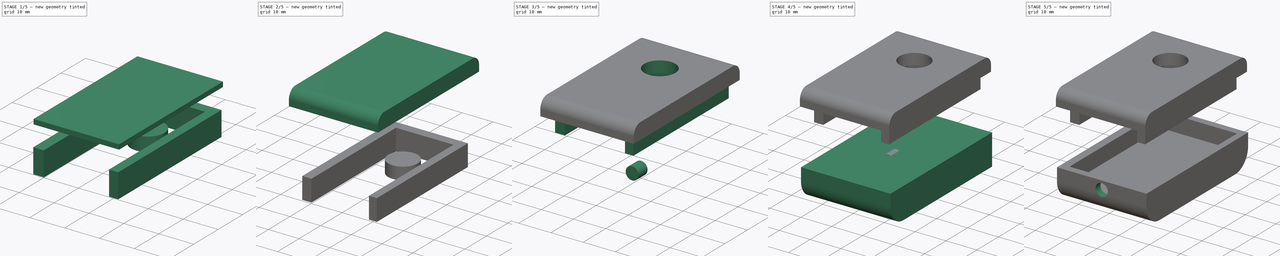
[diagram: build sequence overview — one tinted view per stage of 5, left to right]
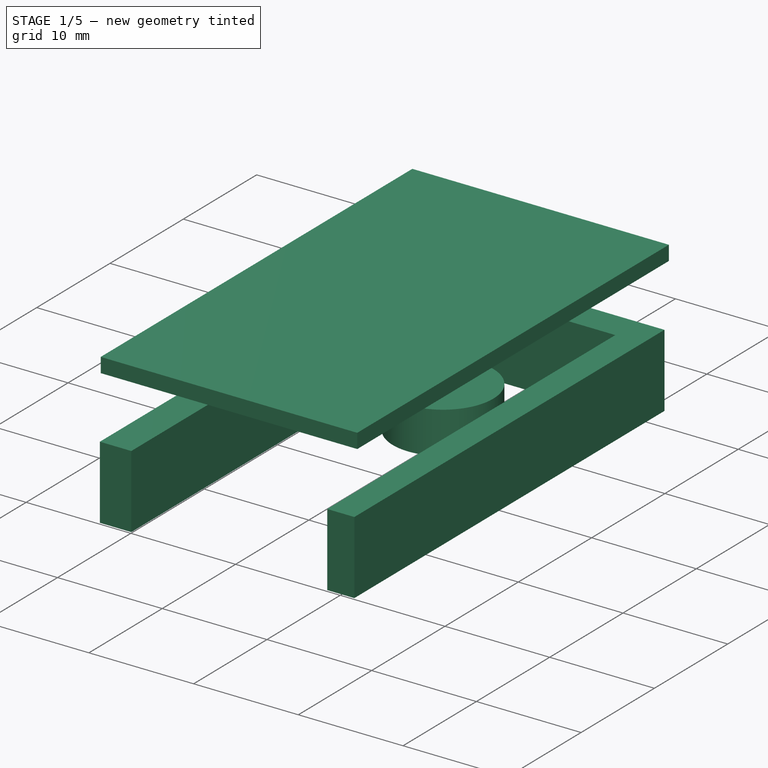
[diagram: stage 1 of 5 — iso view after this stage's code; geometry added in this stage tinted green]
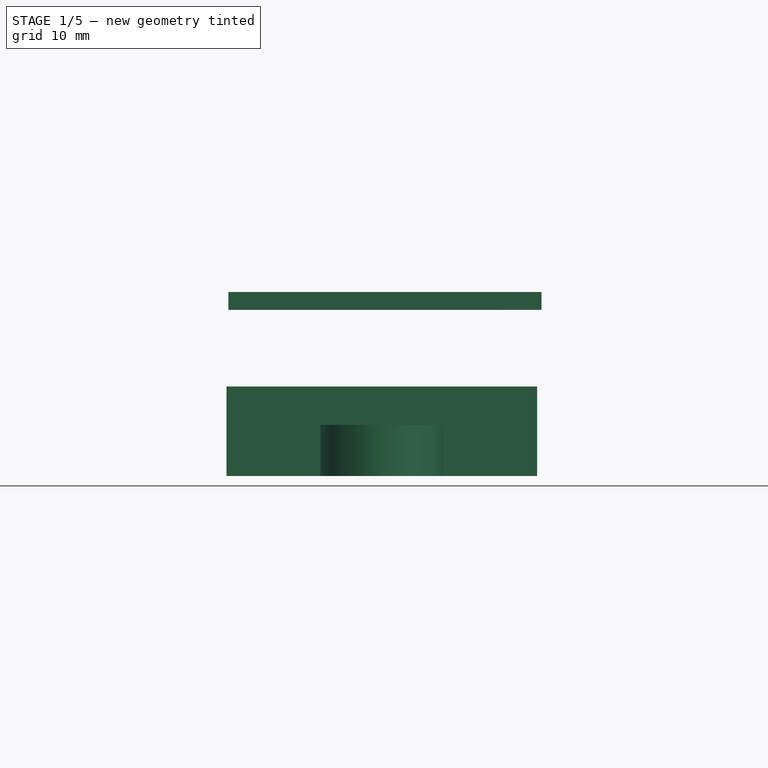
[diagram: stage 1 of 5 — front view after this stage's code; geometry added in this stage tinted green]
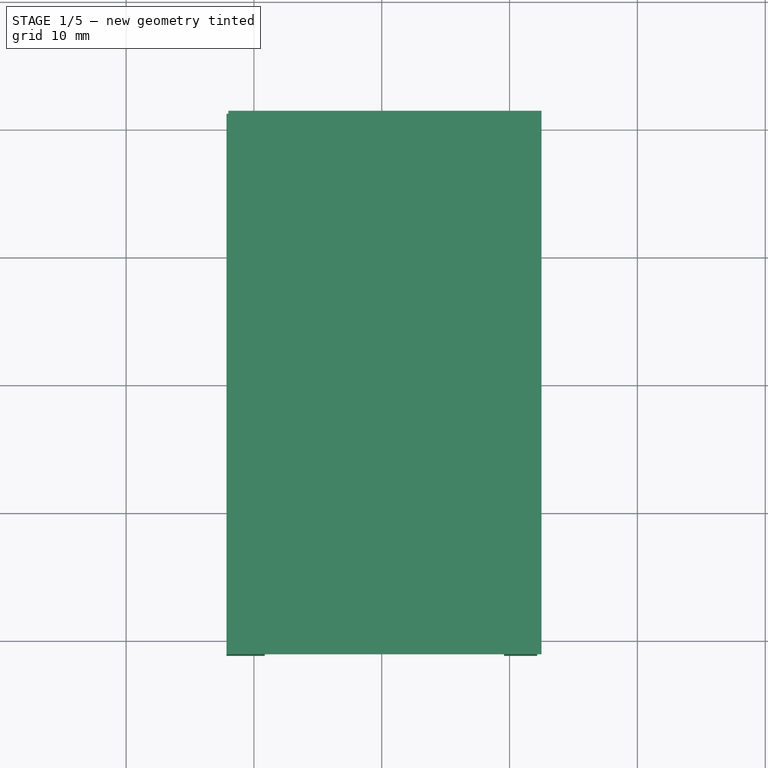
[diagram: stage 1 of 5 — top view after this stage's code; geometry added in this stage tinted green]
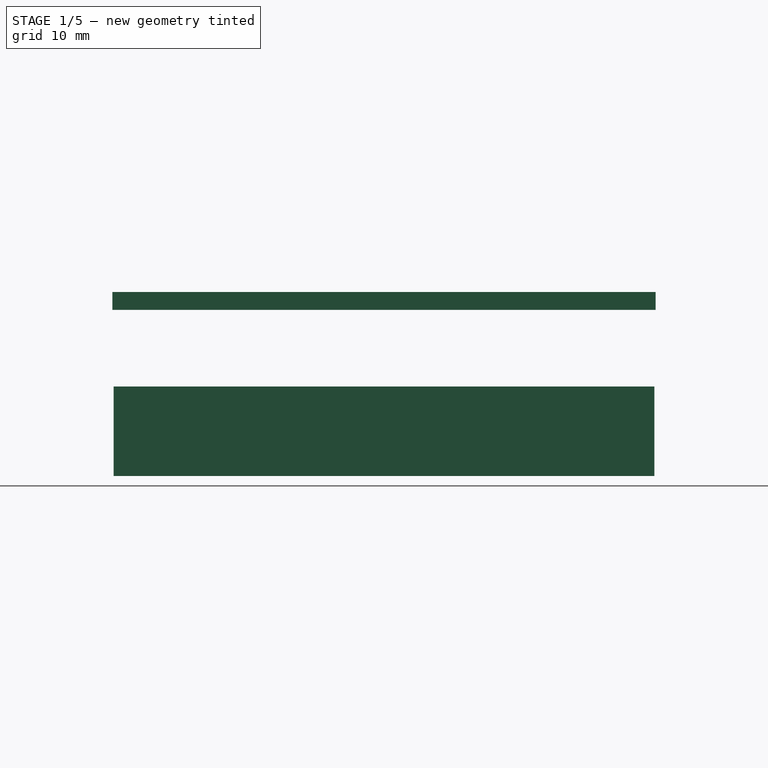
[diagram: stage 1 of 5 — right view after this stage's code; geometry added in this stage tinted green]
FCSTD DOCUMENT  (FreeCAD 0.18R16131 (Git))
Label: sensor
License: All rights reserved
LicenseURL: http://en.wikipedia.org/wiki/All_rights_reserved
objects: Sketcher::SketchObject×4, PartDesign::Pad×4, PartDesign::Body×4, Part::Cut×4, Part::Box×3, PartDesign::Fillet×2, Part::Fillet×1, Part::MultiFuse×1
note: 27 computed .brp shape members not serialized (recipe doc carries the construction recipe); baked Part::Feature solids carry a one-line shape summary decoded from their .brp

FEATURE [Part::Box] Box002  label="Cube002"
  AttacherType = Attacher::AttachEngine3D
  Height = 1.4
  Length = 42.5
  Placement = pos=(12.5,-21.25,13) rot=(0,0,1;1.5708rad)
  Width = 24.5
FEATURE [Sketcher::SketchObject] Sketch001
  MapMode = 5
  Support = -> [XY_Plane001]
  sketch-geometry (6):
    g0: LineSegment [constr] StartX=-12 StartY=21 StartZ=0 EndX=12 EndY=21 EndZ=0
    g1: LineSegment [constr] StartX=12 StartY=21 StartZ=0 EndX=12 EndY=-21 EndZ=0
    g2: LineSegment [constr] StartX=12 StartY=-21 StartZ=0 EndX=-12 EndY=-21 EndZ=0
    g3: LineSegment [constr] StartX=-12 StartY=-21 StartZ=0 EndX=-12 EndY=21 EndZ=0
    g4: LineSegment [constr] StartX=0 StartY=-21 StartZ=0 EndX=0 EndY=3.5 EndZ=0
    g5: Circle CenterX=0 CenterY=8.3 CenterZ=0 NormalX=0 NormalY=0 NormalZ=1 AngleXU=0 Radius=4.8
  constraints (17):
    c: Coincident(g0,g1)
    c: Coincident(g1,g2)
    c: Coincident(g2,g3)
    c: Coincident(g3,g0)
    c: Horizontal(g2)
    c: Vertical(g3)
    c: Distance(g0) = 24
    c: DistanceY(g1,g1) = 42
    c: Symmetric(g0,g0,g-2)
    c: Symmetric(g0,g1,g-1)
    c: PointOnObject(g4,g2)
    c: PointOnObject(g4,g-2)
    c: Vertical(g4)
    c: Distance(g4) = 24.5
    c: PointOnObject(g5,g-2)
    c: PointOnObject(g4,g5)
    c: Radius(g5) = 4.8
FEATURE [PartDesign::Pad] Pad001
  Length = 4
  Length2 = 100
  Profile = -> Sketch001
  Refine = true
  Type = 0
FEATURE [Sketcher::SketchObject] Sketch002
  MapMode = 5
  Support = -> [XY_Plane002]
  sketch-geometry (12):
    g0: LineSegment [constr] StartX=-12.15 StartY=21.15 StartZ=0 EndX=12.15 EndY=21.15 EndZ=0
    g1: LineSegment [constr] StartX=12.15 StartY=21.15 StartZ=0 EndX=12.15 EndY=-21.15 EndZ=0
    g2: LineSegment [constr] StartX=12.15 StartY=-21.15 StartZ=0 EndX=-12.15 EndY=-21.15 EndZ=0
    g3: LineSegment [constr] StartX=-12.15 StartY=-21.15 StartZ=0 EndX=-12.15 EndY=21.15 EndZ=0
    g4: LineSegment StartX=-12.15 StartY=-21.15 StartZ=0 EndX=-12.15 EndY=21.15 EndZ=0
    g5: LineSegment StartX=-12.15 StartY=21.15 StartZ=0 EndX=12.15 EndY=21.15 EndZ=0
    g6: LineSegment StartX=12.15 StartY=21.15 StartZ=0 EndX=12.15 EndY=-21.15 EndZ=0
    g7: LineSegment StartX=12.15 StartY=-21.15 StartZ=0 EndX=9.55894 EndY=-21.15 EndZ=0
    g8: LineSegment StartX=9.55894 StartY=-21.15 StartZ=0 EndX=9.55894 EndY=18.15 EndZ=0
    g9: LineSegment StartX=9.55894 StartY=18.15 StartZ=0 EndX=-9.15 EndY=18.15 EndZ=0
    g10: LineSegment StartX=-9.15 StartY=18.15 StartZ=0 EndX=-9.15 EndY=-21.15 EndZ=0
    g11: LineSegment StartX=-12.15 StartY=-21.15 StartZ=0 EndX=-9.15 EndY=-21.15 EndZ=0
  constraints (29):
    c: Coincident(g0,g1)
    c: Coincident(g1,g2)
    c: Coincident(g2,g3)
    c: Coincident(g3,g0)
    c: Horizontal(g2)
    c: Vertical(g1)
    c: Symmetric(g0,g0,g-2)
    c: DistanceX(g0,g0) = 24.3
    c: Symmetric(g0,g2,g-1)
    c: DistanceY(g3,g3) = 42.3
    c: Coincident(g2,g4)
    c: Coincident(g4,g0)
    c: Coincident(g4,g5)
    c: Coincident(g5,g0)
    c: Coincident(g5,g6)
    c: Coincident(g6,g1)
    c: Coincident(g6,g7)
    c: PointOnObject(g7,g2)
    c: Coincident(g7,g8)
    c: Vertical(g8)
    c: Coincident(g9,g8)
    c: Horizontal(g9)
    c: Coincident(g10,g9)
    c: PointOnObject(g10,g2)
    c: Vertical(g10)
    c: Coincident(g11,g4)
    c: Coincident(g11,g10)
    c: Distance(g11) = 3
    c: Distance(g9,g5) = 3
FEATURE [PartDesign::Pad] Pad002
  Length = 7
  Length2 = 100
  Profile = -> Sketch002
  Refine = true
  Type = 0
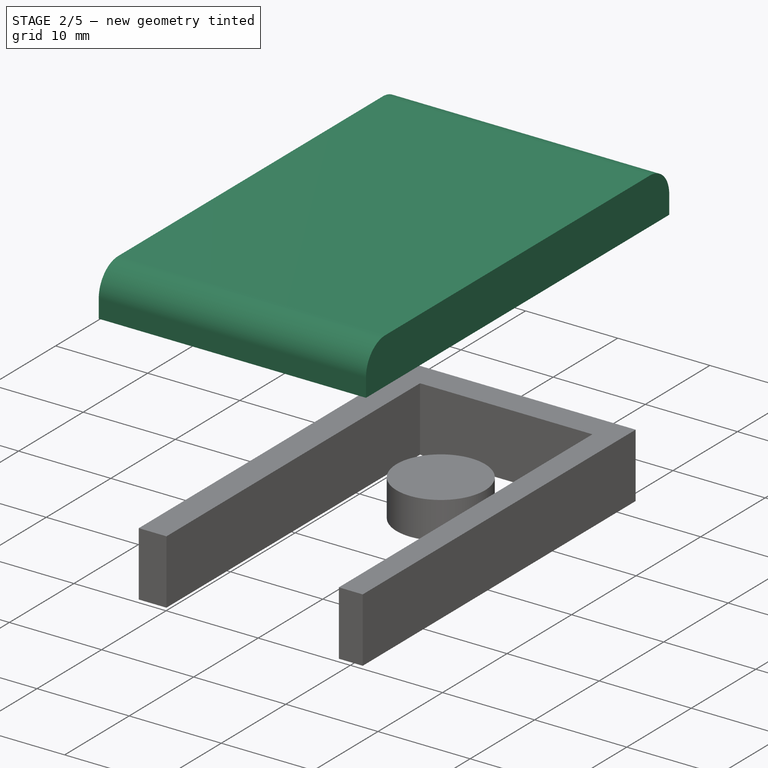
[diagram: stage 2 of 5 — iso view after this stage's code; geometry added in this stage tinted green]
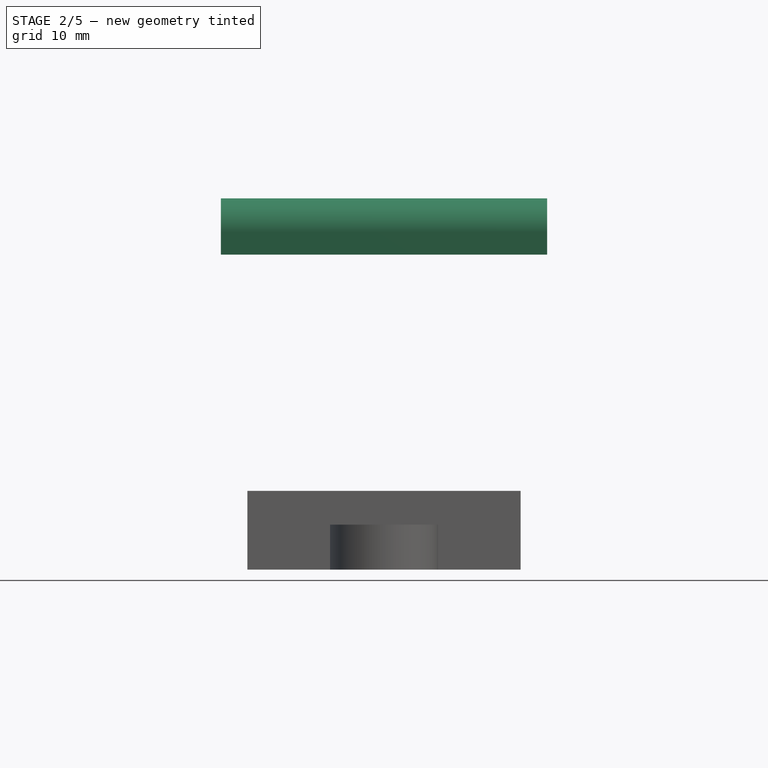
[diagram: stage 2 of 5 — front view after this stage's code; geometry added in this stage tinted green]
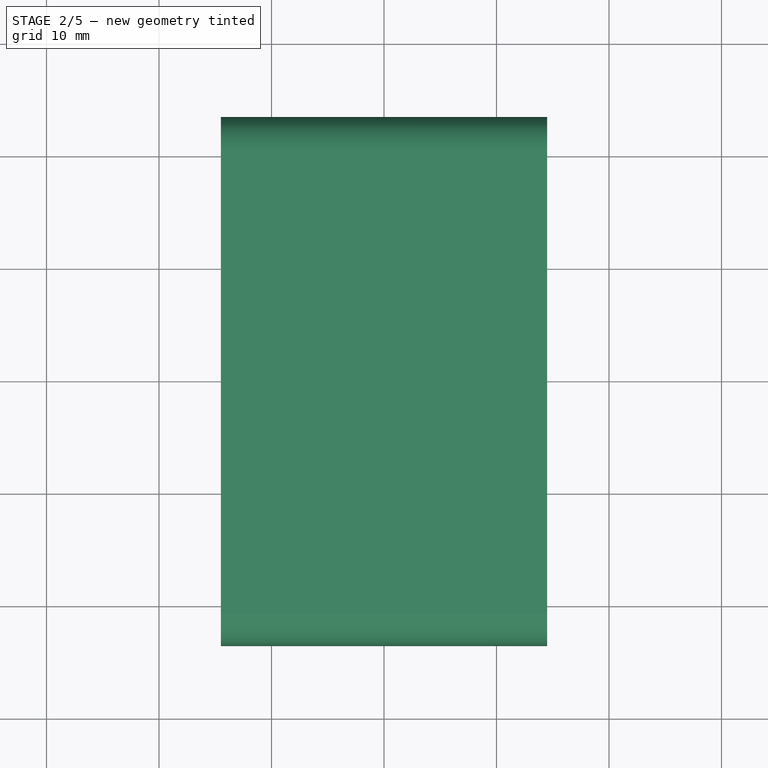
[diagram: stage 2 of 5 — top view after this stage's code; geometry added in this stage tinted green]
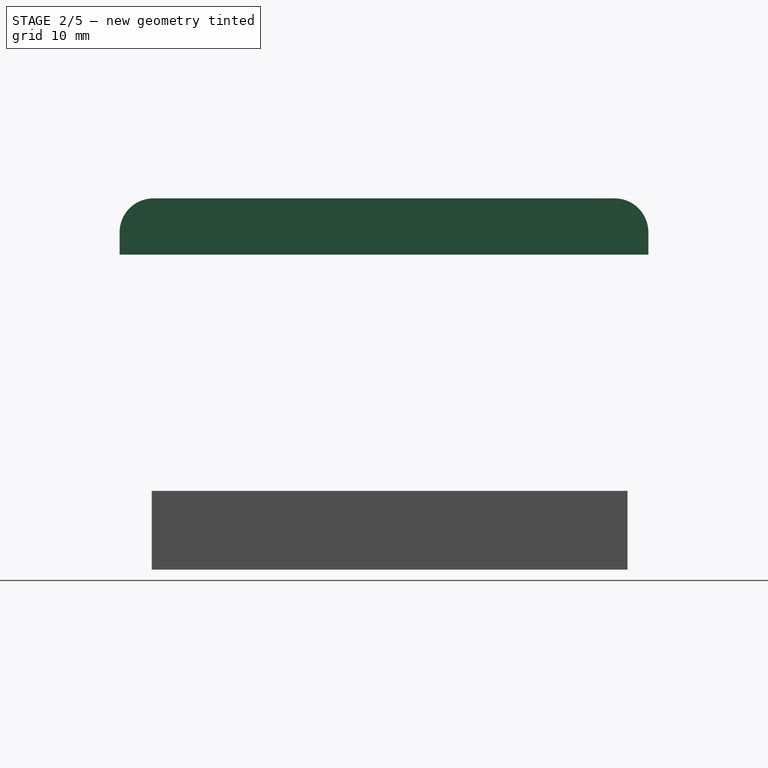
[diagram: stage 2 of 5 — right view after this stage's code; geometry added in this stage tinted green]
FEATURE [Part::Box] Box001  label="Cube001"
  AttacherType = Attacher::AttachEngine3D
  Height = 5
  Length = 29
  Placement = pos=(-14.5,-24,13) rot=(0,0,1;0rad)
  Width = 47
FEATURE [Part::Cut] Cut001
  Base = -> Box001
  Refine = true
  Tool = -> Box002
FEATURE [Part::Fillet] Fillet002
  Base = -> Cut001
  Edges = 2 edges r=3: [Edge7,Edge8]
  Placement = pos=(0,0,15) rot=(0,0,1;0rad)
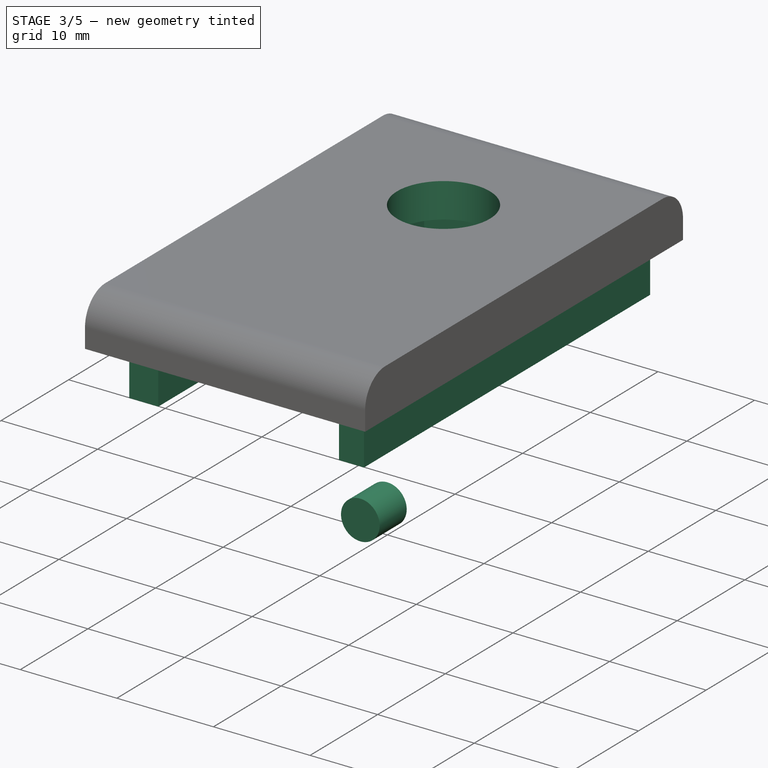
[diagram: stage 3 of 5 — iso view after this stage's code; geometry added in this stage tinted green]
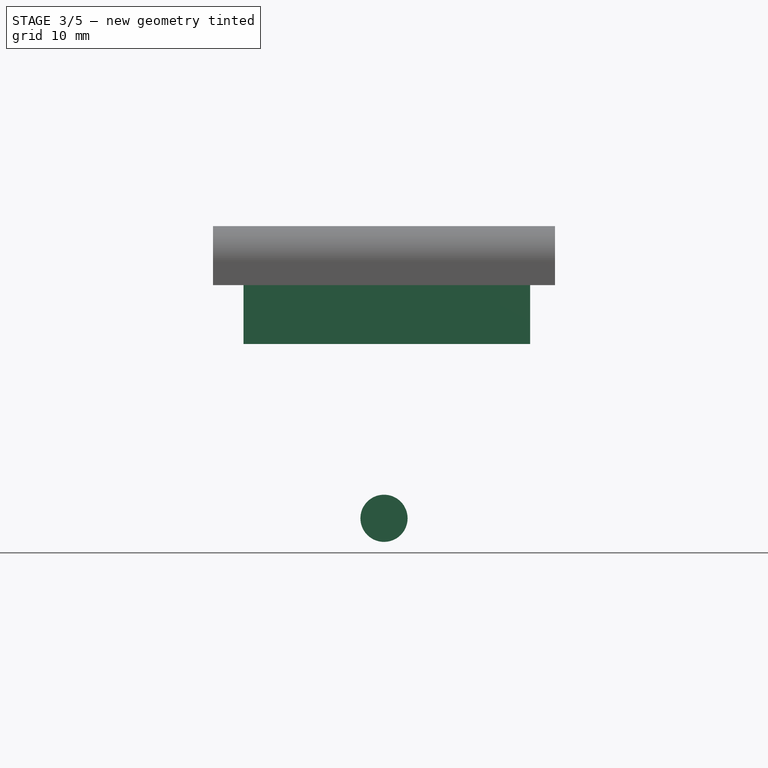
[diagram: stage 3 of 5 — front view after this stage's code; geometry added in this stage tinted green]
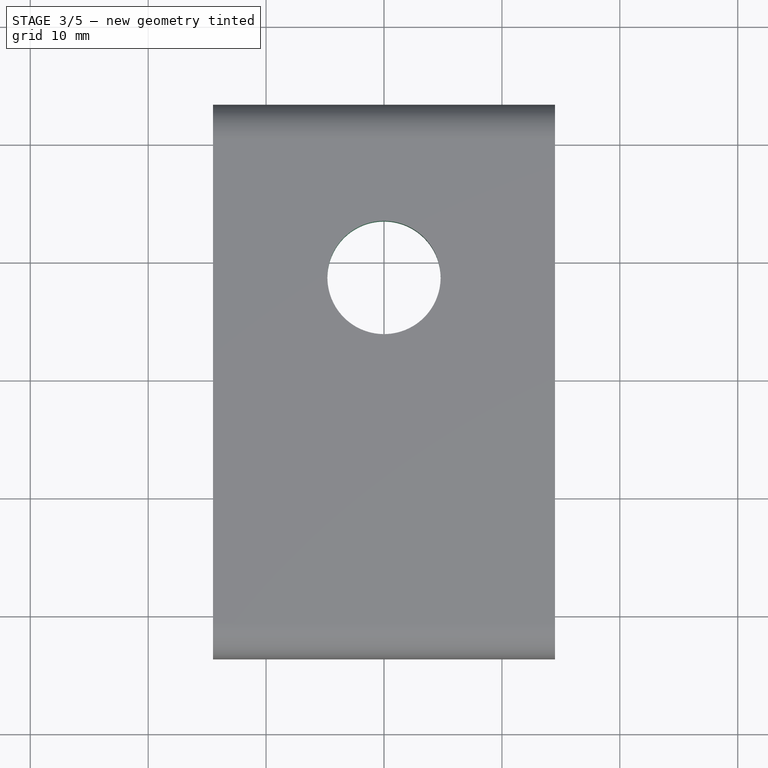
[diagram: stage 3 of 5 — top view after this stage's code; geometry added in this stage tinted green]
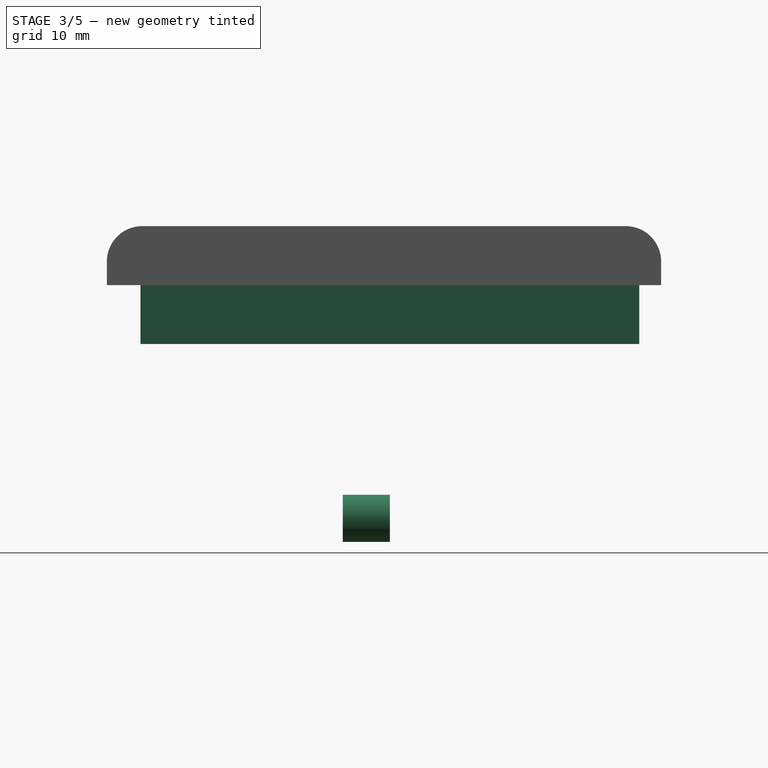
[diagram: stage 3 of 5 — right view after this stage's code; geometry added in this stage tinted green]
FEATURE [PartDesign::Body] Body001
  Group = -> [Sketch001,Pad001]
  Origin = -> Origin001
  Placement = pos=(0,0,29) rot=(0,0,1;0rad)
  Tip = -> Pad001
FEATURE [Part::Cut] Cut002
  Base = -> Fillet002
  Refine = true
  Tool = -> Body001
FEATURE [PartDesign::Body] Body002
  Group = -> [Sketch002,Pad002]
  Origin = -> Origin002
  Placement = pos=(0.24,0,23) rot=(0,0,1;0rad)
  Tip = -> Pad002
FEATURE [Sketcher::SketchObject] Sketch003
  MapMode = 5
  Placement = pos=(0,0,0) rot=(1,0,0;1.5708rad)
  Support = -> [XZ_Plane003]
  sketch-geometry (1):
    g0: Circle CenterX=0 CenterY=8.22078 CenterZ=0 NormalX=0 NormalY=0 NormalZ=1 AngleXU=0 Radius=2
  constraints (2):
    c: PointOnObject(g0,g-2)
    c: Radius(g0) = 2
FEATURE [PartDesign::Pad] Pad003
  Length = 4
  Length2 = 100
  Placement = pos=(0,0,0) rot=(1,0,0;1.5708rad)
  Profile = -> Sketch003
  Refine = true
  Type = 0
FEATURE [Part::MultiFuse] Fusion  label="top"
  Refine = true
  Shapes = -> [Cut002,Body002]
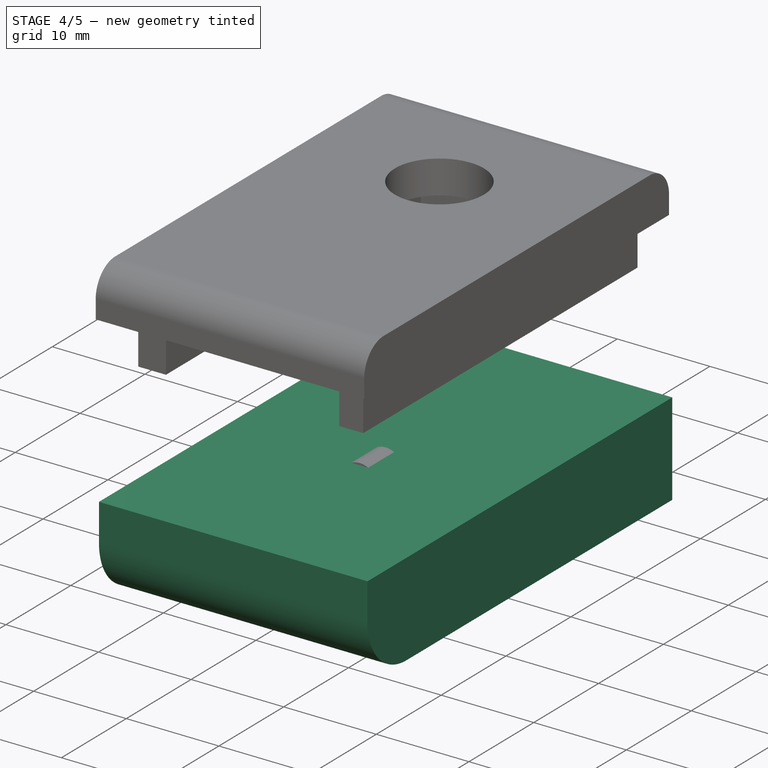
[diagram: stage 4 of 5 — iso view after this stage's code; geometry added in this stage tinted green]
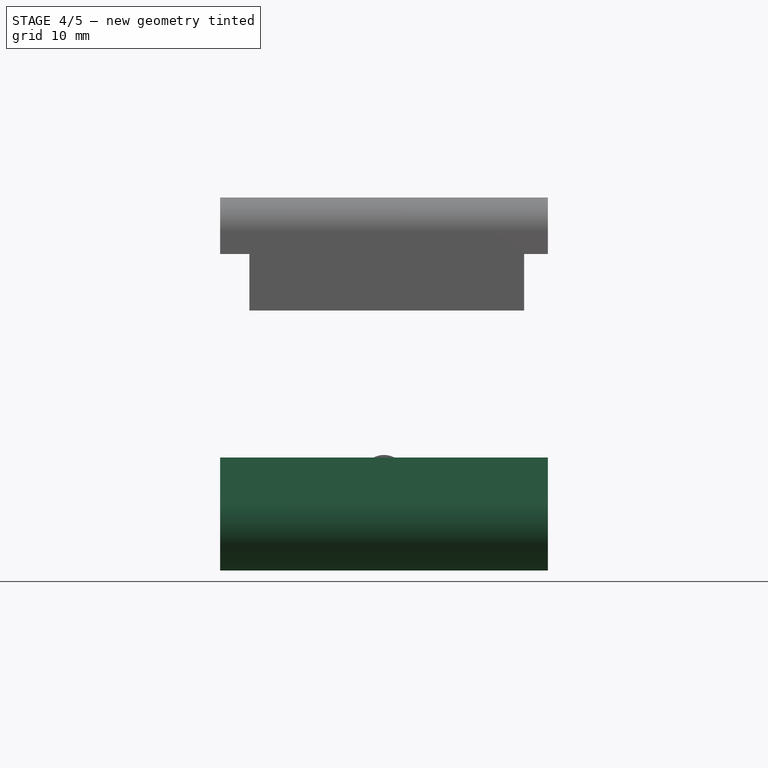
[diagram: stage 4 of 5 — front view after this stage's code; geometry added in this stage tinted green]
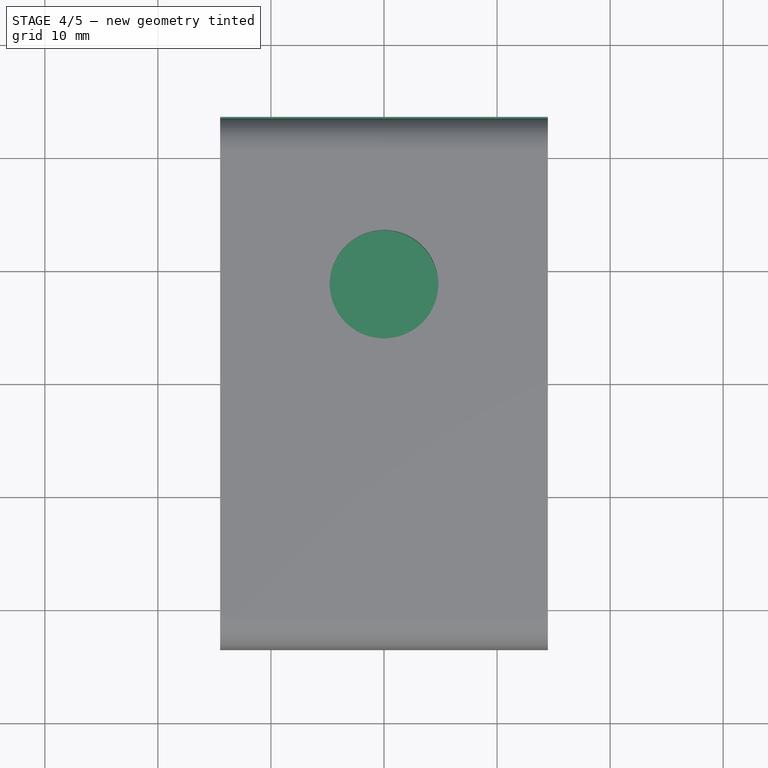
[diagram: stage 4 of 5 — top view after this stage's code; geometry added in this stage tinted green]
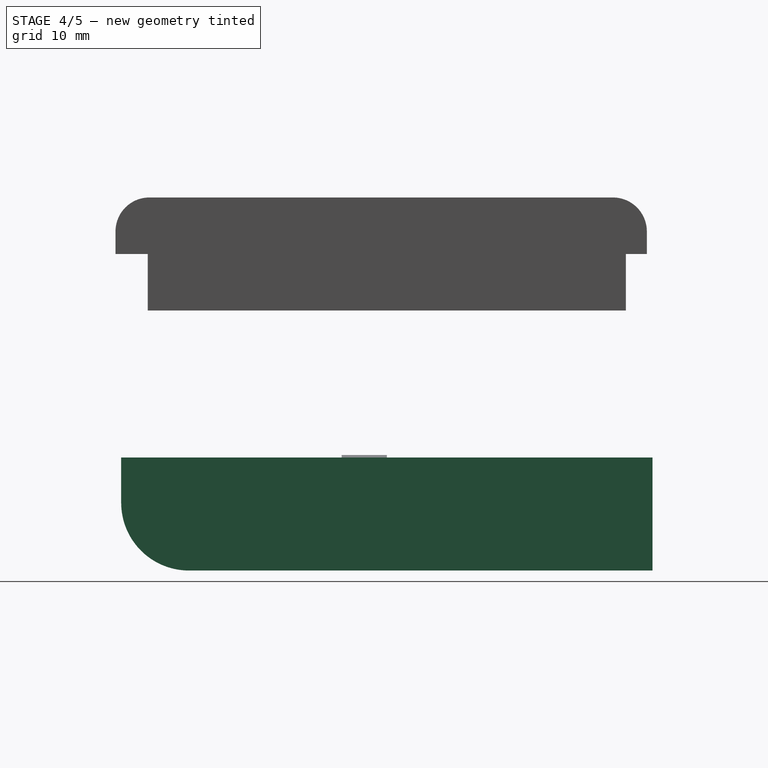
[diagram: stage 4 of 5 — right view after this stage's code; geometry added in this stage tinted green]
FEATURE [Sketcher::SketchObject] Sketch
  MapMode = 5
  Support = -> [XY_Plane]
  sketch-geometry (9):
    g0: LineSegment [constr] StartX=-12 StartY=21 StartZ=0 EndX=12 EndY=21 EndZ=0
    g1: LineSegment [constr] StartX=12 StartY=21 StartZ=0 EndX=12 EndY=-21 EndZ=0
    g2: LineSegment [constr] StartX=12 StartY=-21 StartZ=0 EndX=-12 EndY=-21 EndZ=0
    g3: LineSegment [constr] StartX=-12 StartY=-21 StartZ=0 EndX=-12 EndY=21 EndZ=0
    g4: LineSegment StartX=-14.5 StartY=23.5 StartZ=0 EndX=14.5 EndY=23.5 EndZ=0
    g5: LineSegment StartX=14.5 StartY=23.5 StartZ=0 EndX=14.5 EndY=-23.5 EndZ=0
    g6: LineSegment StartX=14.5 StartY=-23.5 StartZ=0 EndX=-14.5 EndY=-23.5 EndZ=0
    g7: LineSegment StartX=-14.5 StartY=-23.5 StartZ=0 EndX=-14.5 EndY=23.5 EndZ=0
    g8: LineSegment [constr] StartX=0 StartY=-21 StartZ=0 EndX=0 EndY=-42.9528 EndZ=0
  constraints (22):
    c: Coincident(g0,g1)
    c: Coincident(g1,g2)
    c: Coincident(g2,g3)
    c: Coincident(g3,g0)
    c: Horizontal(g2)
    c: Vertical(g1)
    c: Symmetric(g0,g0,g-2)
    c: Symmetric(g0,g2,g-1)
    c: Distance(g0) = 24
    c: DistanceY(g1,g1) = 42
    c: Coincident(g4,g5)
    c: Coincident(g5,g6)
    c: Coincident(g6,g7)
    c: Coincident(g7,g4)
    c: Horizontal(g6)
    c: Vertical(g5)
    c: DistanceX(g4,g4) = 29
    c: DistanceY(g5,g5) = 47
    c: Symmetric(g4,g4,g-2)
    c: Symmetric(g4,g6,g-1)
    c: PointOnObject(g8,g2)
    c: Vertical(g8)
FEATURE [PartDesign::Pad] Pad
  Length = 10
  Length2 = 100
  Profile = -> Sketch
  Refine = true
  Type = 0
FEATURE [PartDesign::Fillet] Fillet
  Base = -> Pad [Edge9]
  BaseFeature = -> Pad
  Radius = 6
FEATURE [PartDesign::Body] Body
  Group = -> [Sketch,Pad,Fillet,Fillet001]
  Origin = -> Origin
  Tip = -> Fillet001
FEATURE [Part::Box] Box  label="Cube"
  AttacherType = Attacher::AttachEngine3D
  Height = 5
  Length = 24.5
  Placement = pos=(-12,-21.25,5) rot=(0,0,1;0rad)
  Width = 42.5
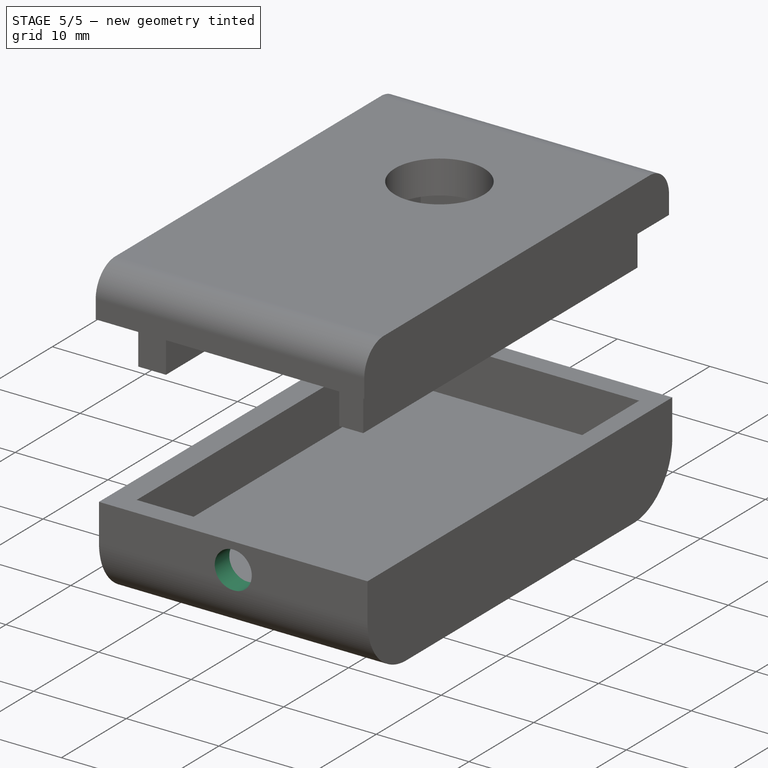
[diagram: stage 5 of 5 — iso view after this stage's code; geometry added in this stage tinted green]
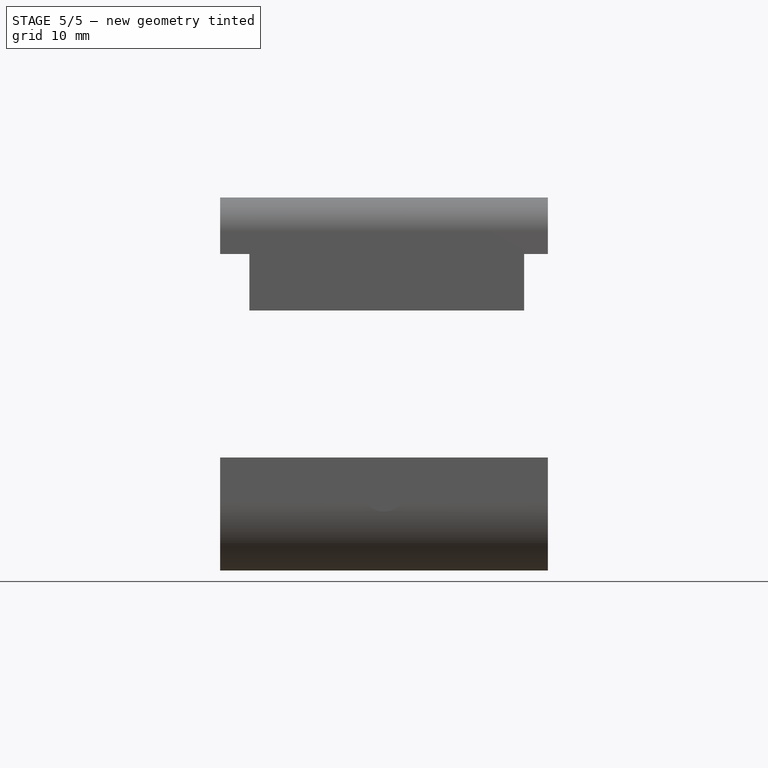
[diagram: stage 5 of 5 — front view after this stage's code; geometry added in this stage tinted green]
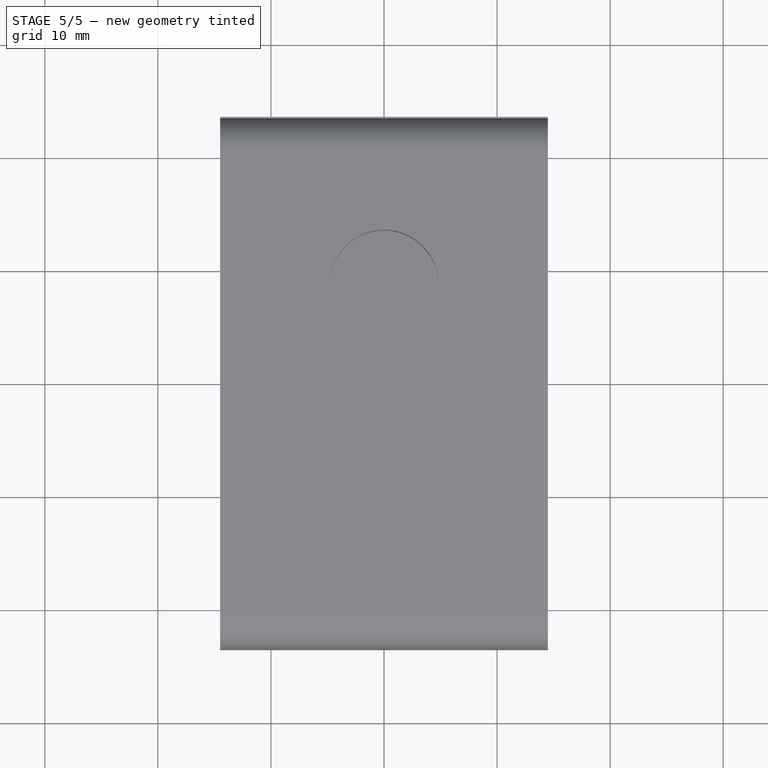
[diagram: stage 5 of 5 — top view after this stage's code; geometry added in this stage tinted green]
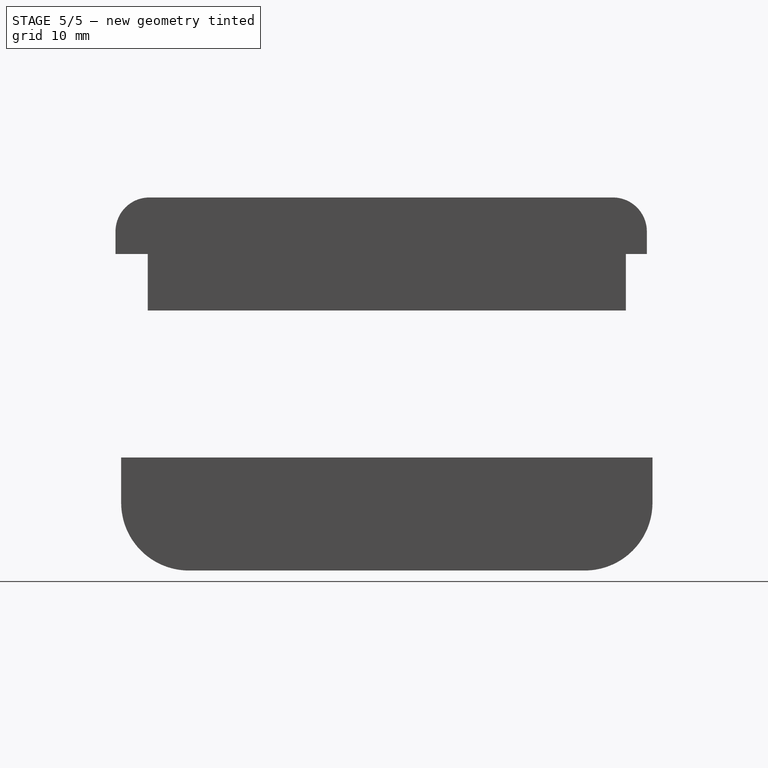
[diagram: stage 5 of 5 — right view after this stage's code; geometry added in this stage tinted green]
FEATURE [PartDesign::Fillet] Fillet001
  Base = -> Fillet [Edge13]
  BaseFeature = -> Fillet
  Radius = 6
FEATURE [Part::Cut] Cut
  Base = -> Fillet001
  Refine = true
  Tool = -> Box
FEATURE [PartDesign::Body] Body003
  Group = -> [Sketch003,Pad003]
  Origin = -> Origin003
  Placement = pos=(0,-21,-1) rot=(0,0,1;0rad)
  Tip = -> Pad003
FEATURE [Part::Cut] Cut003  label="bottom"
  Base = -> Cut
  Refine = true
  Tool = -> Body003
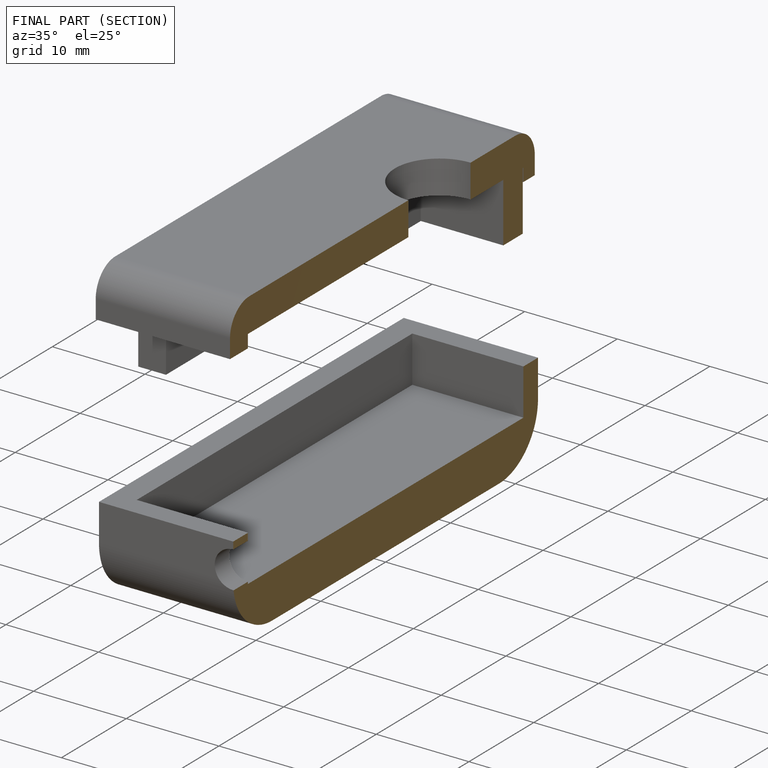
[diagram: finished part — half-section view (interior)]
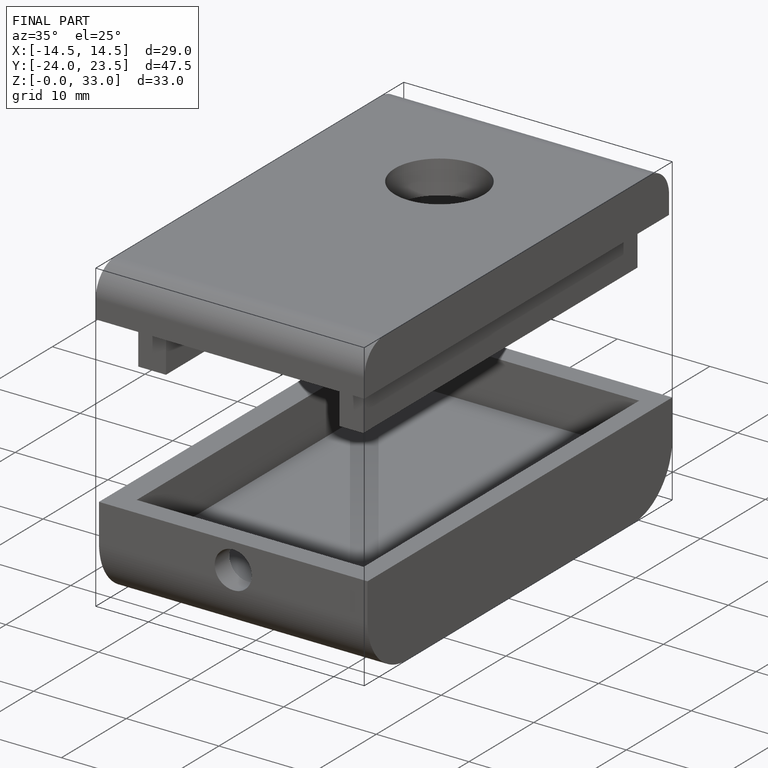
[diagram: finished part — iso view with bounding-box wireframe]
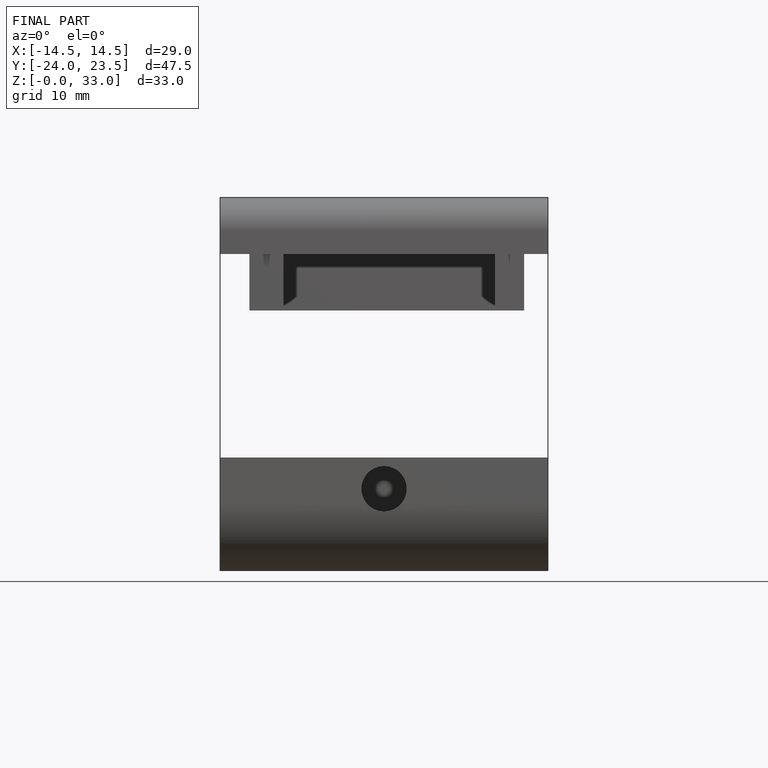
[diagram: finished part — front view with bounding-box wireframe]
